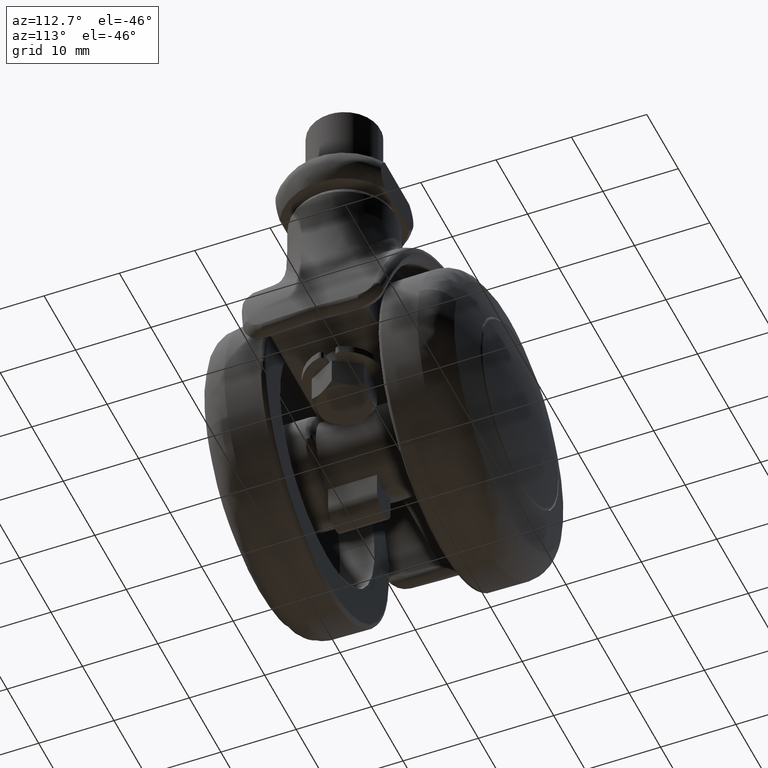
[diagram: clean part render]
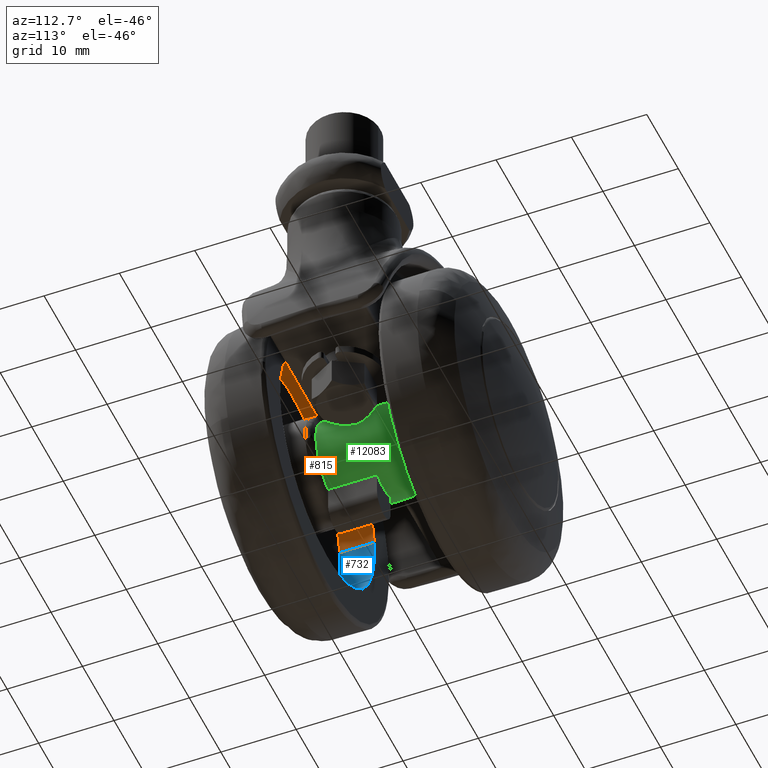
[diagram: same view with three faces highlighted in distinct colors, each labeled with its STEP entity id]
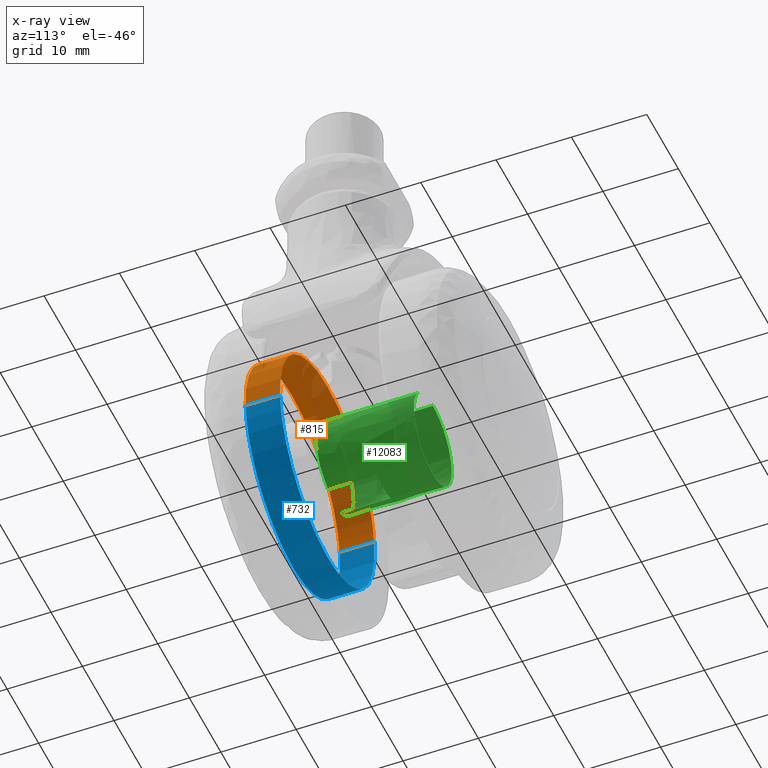
[diagram: x-ray of the same camera — body ghosted, the three highlighted faces saturated]
A machine part, auxiliary view with three faces highlighted in distinct colors.
The next image is the same camera in x-ray (body ghosted, the three faces saturated) — at least one of them is partly hidden behind the body in this view.
Their STEP definitions:

[orange] entity #815 — the highlighted face is a freeform B-spline surface patch.
#652=CARTESIAN_POINT('',(-14.895143268031070,-7.500000000000112,1.770510385402628));
#653=VERTEX_POINT('',#652);
#671=CARTESIAN_POINT('',(-14.895143263547910,-12.087232230838939,1.770510423119121));
#672=VERTEX_POINT('',#671);
#673=CARTESIAN_POINT('',(-14.895143268031070,-7.500000000000112,1.770510385402628));
#674=CARTESIAN_POINT('',(-14.895143263547910,-12.087232230838939,1.770510423119121));
#675=QUASI_UNIFORM_CURVE('',1,(#673,#674),.UNSPECIFIED.,.F.,.U.);
#676=EDGE_CURVE('',#653,#672,#675,.T.);
#695=CARTESIAN_POINT('',(14.972022665491700,-12.087232230838939,-0.915716825156851));
#696=VERTEX_POINT('',#695);
#710=CARTESIAN_POINT('',(14.972022673904799,-7.499999999999893,-0.915716687600522));
#711=VERTEX_POINT('',#710);
#712=CARTESIAN_POINT('',(14.972022673904799,-7.499999999999893,-0.915716687600522));
#713=CARTESIAN_POINT('',(14.972022665491700,-12.087232230838939,-0.915716825156851));
#714=QUASI_UNIFORM_CURVE('',1,(#712,#713),.UNSPECIFIED.,.F.,.U.);
#715=EDGE_CURVE('',#711,#696,#714,.T.);
#733=CARTESIAN_POINT('',(14.972021976328000,-7.385319194229117,-0.915728093022853));
#734=CARTESIAN_POINT('',(15.887750069350853,-7.385319194229119,14.056293883305147));
#735=CARTESIAN_POINT('',(0.915728093022855,-7.385319194229117,14.972021976328000));
#736=CARTESIAN_POINT('',(-13.223152362592515,-7.385319194229119,15.836792950987912));
#737=CARTESIAN_POINT('',(-14.895142895454988,-7.385319194229118,1.770513519851378));
#738=CARTESIAN_POINT('',(14.972021976328000,-12.204780056754190,-0.915728093022853));
#739=CARTESIAN_POINT('',(15.887750069350853,-12.204780056754187,14.056293883305147));
#740=CARTESIAN_POINT('',(0.915728093022855,-12.204780056754190,14.972021976328000));
#741=CARTESIAN_POINT('',(-13.223152362592515,-12.204780056754187,15.836792950987912));
#742=CARTESIAN_POINT('',(-14.895142895454988,-12.204780056754194,1.770513519851378));
#750=(BOUNDED_SURFACE()B_SPLINE_SURFACE(2,1,((#733,#738),(#734,#739),(#735,#740),(#736,#741),(#737,#742)),.UNSPECIFIED.,.F.,.F.,.U.)B_SPLINE_SURFACE_WITH_KNOTS((3,2,3),(2,2),(0.0,24.852813742385699,48.711514935075961),(0.0,4.819460862525070),.UNSPECIFIED.)GEOMETRIC_REPRESENTATION_ITEM()RATIONAL_B_SPLINE_SURFACE(((1.0,1.0),(0.707106781186548,0.707106781186548),(1.0,1.0),(0.718822509939086,0.718822509939086),(0.977505800795127,0.977505800795127)))REPRESENTATION_ITEM('')SURFACE());
#751=CARTESIAN_POINT('',(0.0,-7.500000000000090,15.0));
#752=VERTEX_POINT('',#751);
#753=CARTESIAN_POINT('',(0.0,-7.500000000000090,15.0));
#754=CARTESIAN_POINT('',(-13.322620712542287,-7.500000000000089,15.000000000000009));
#755=CARTESIAN_POINT('',(-14.895143268031076,-7.500000000000112,1.770510385402628));
#763=(BOUNDED_CURVE()B_SPLINE_CURVE(2,(#753,#754,#755),.UNSPECIFIED.,.F.,.U.)B_SPLINE_CURVE_WITH_KNOTS((3,3),(0.0,0.229562509079723),.UNSPECIFIED.)CURVE()GEOMETRIC_REPRESENTATION_ITEM()RATIONAL_B_SPLINE_CURVE((1.0,0.731050791186990,0.956026823894947))REPRESENTATION_ITEM(''));
#764=EDGE_CURVE('',#752,#653,#763,.T.);
#765=ORIENTED_EDGE('',*,*,#764,.F.);
#766=CARTESIAN_POINT('',(14.972022673904796,-7.499999999999893,-0.915716687600522));
#767=CARTESIAN_POINT('',(15.000000000000004,-7.500000000000091,-0.458285730778153));
#768=CARTESIAN_POINT('',(15.0,-7.500000000000090,1.487897E-015));
#769=CARTESIAN_POINT('',(14.999999999999996,-7.500000000000089,15.000000000000012));
#770=CARTESIAN_POINT('',(0.0,-7.500000000000090,15.0));
#778=(BOUNDED_CURVE()B_SPLINE_CURVE(2,(#766,#767,#768,#769,#770),.UNSPECIFIED.,.F.,.U.)B_SPLINE_CURVE_WITH_KNOTS((3,2,3),(0.739333093685083,0.750000000000000,1.0),.UNSPECIFIED.)CURVE()GEOMETRIC_REPRESENTATION_ITEM()RATIONAL_B_SPLINE_CURVE((0.976072323380980,0.987502941898570,1.0,0.707106781186547,1.0))REPRESENTATION_ITEM(''));
#779=EDGE_CURVE('',#711,#752,#778,.T.);
#780=ORIENTED_EDGE('',*,*,#779,.F.);
#781=ORIENTED_EDGE('',*,*,#715,.T.);
#782=CARTESIAN_POINT('',(0.0,-12.087232230838939,15.0));
#783=VERTEX_POINT('',#782);
#784=CARTESIAN_POINT('',(14.972022665491700,-12.087232230838943,-0.915716825156851));
#785=CARTESIAN_POINT('',(15.0,-12.087232230838937,-0.458285799749155));
#786=CARTESIAN_POINT('',(15.0,-12.087232230838939,1.487897E-015));
#787=CARTESIAN_POINT('',(14.999999999999996,-12.087232230838939,15.000000000000012));
#788=CARTESIAN_POINT('',(0.0,-12.087232230838939,15.0));
#796=(BOUNDED_CURVE()B_SPLINE_CURVE(2,(#784,#785,#786,#787,#788),.UNSPECIFIED.,.F.,.U.)B_SPLINE_CURVE_WITH_KNOTS((3,2,3),(0.739333092099799,0.750000000000000,1.0),.UNSPECIFIED.)CURVE()GEOMETRIC_REPRESENTATION_ITEM()RATIONAL_B_SPLINE_CURVE((0.976072319983410,0.987502940041294,1.0,0.707106781186547,1.0))REPRESENTATION_ITEM(''));
#797=EDGE_CURVE('',#696,#783,#796,.T.);
#798=ORIENTED_EDGE('',*,*,#797,.T.);
#799=CARTESIAN_POINT('',(0.0,-12.087232230838939,15.0));
#800=CARTESIAN_POINT('',(-13.322620678570152,-12.087232230838941,15.000000000000005));
#801=CARTESIAN_POINT('',(-14.895143263547912,-12.087232230838936,1.770510423119121));
#809=(BOUNDED_CURVE()B_SPLINE_CURVE(2,(#799,#800,#801),.UNSPECIFIED.,.F.,.U.)B_SPLINE_CURVE_WITH_KNOTS((3,3),(0.0,0.229562508651784),.UNSPECIFIED.)CURVE()GEOMETRIC_REPRESENTATION_ITEM()RATIONAL_B_SPLINE_CURVE((1.0,0.731050791688352,0.956026823056169))REPRESENTATION_ITEM(''));
#810=EDGE_CURVE('',#783,#672,#809,.T.);
#811=ORIENTED_EDGE('',*,*,#810,.T.);
#812=ORIENTED_EDGE('',*,*,#676,.F.);
#813=EDGE_LOOP('',(#765,#780,#781,#798,#811,#812));
#814=FACE_OUTER_BOUND('',#813,.T.);
#815=ADVANCED_FACE('',(#814),#750,.F.);

[blue] entity #732 — the highlighted face is a freeform B-spline surface patch.
#630=CARTESIAN_POINT('',(-14.895142895454988,-7.385319194229118,1.770513519851378));
#631=CARTESIAN_POINT('',(-14.945814231729083,-7.385319194229117,1.344220929569667));
#632=CARTESIAN_POINT('',(-14.972021976328000,-7.385319194229117,0.915728093022856));
#633=CARTESIAN_POINT('',(-15.887750069350853,-7.385319194229119,-14.056293883305143));
#634=CARTESIAN_POINT('',(-0.915728093022855,-7.385319194229117,-14.972021976328000));
#635=CARTESIAN_POINT('',(14.056293883305147,-7.385319194229119,-15.887750069350853));
#636=CARTESIAN_POINT('',(14.972021976328000,-7.385319194229117,-0.915728093022853));
#637=CARTESIAN_POINT('',(-14.895142895454988,-12.204780056754194,1.770513519851378));
#638=CARTESIAN_POINT('',(-14.945814231729083,-12.204780056754190,1.344220929569667));
#639=CARTESIAN_POINT('',(-14.972021976328000,-12.204780056754190,0.915728093022856));
#640=CARTESIAN_POINT('',(-15.887750069350853,-12.204780056754187,-14.056293883305143));
#641=CARTESIAN_POINT('',(-0.915728093022855,-12.204780056754190,-14.972021976328000));
#642=CARTESIAN_POINT('',(14.056293883305147,-12.204780056754187,-15.887750069350853));
#643=CARTESIAN_POINT('',(14.972021976328000,-12.204780056754190,-0.915728093022853));
#651=(BOUNDED_SURFACE()B_SPLINE_SURFACE(2,1,((#630,#637),(#631,#638),(#632,#639),(#633,#640),(#634,#641),(#635,#642),(#636,#643)),.UNSPECIFIED.,.F.,.F.,.U.)B_SPLINE_SURFACE_WITH_KNOTS((3,2,2,3),(2,2),(0.0,0.994112549695429,25.846926292081129,50.699740034466821),(0.0,4.819460862525070),.UNSPECIFIED.)GEOMETRIC_REPRESENTATION_ITEM()RATIONAL_B_SPLINE_SURFACE(((0.977505800795127,0.977505800795127),(0.988284271247462,0.988284271247462),(1.0,1.0),(0.707106781186548,0.707106781186548),(1.0,1.0),(0.707106781186548,0.707106781186548),(1.0,1.0)))REPRESENTATION_ITEM('')SURFACE());
#652=CARTESIAN_POINT('',(-14.895143268031070,-7.500000000000112,1.770510385402628));
#653=VERTEX_POINT('',#652);
#654=CARTESIAN_POINT('',(0.0,-7.500000000000090,-15.0));
#655=VERTEX_POINT('',#654);
#656=CARTESIAN_POINT('',(-14.895143268031076,-7.500000000000112,1.770510385402628));
#657=CARTESIAN_POINT('',(-15.000000000000002,-7.500000000000091,0.888360210985831));
#658=CARTESIAN_POINT('',(-15.0,-7.500000000000090,1.487897E-015));
#659=CARTESIAN_POINT('',(-14.999999999999996,-7.500000000000089,-14.999999999999996));
#660=CARTESIAN_POINT('',(0.0,-7.500000000000090,-15.0));
#668=(BOUNDED_CURVE()B_SPLINE_CURVE(2,(#656,#657,#658,#659,#660),.UNSPECIFIED.,.F.,.U.)B_SPLINE_CURVE_WITH_KNOTS((3,2,3),(0.229562509079723,0.250000000000000,0.500000000000000),.UNSPECIFIED.)CURVE()GEOMETRIC_REPRESENTATION_ITEM()RATIONAL_B_SPLINE_CURVE((0.956026823894947,0.976055989999557,1.0,0.707106781186547,1.0))REPRESENTATION_ITEM(''));
#669=EDGE_CURVE('',#653,#655,#668,.T.);
#670=ORIENTED_EDGE('',*,*,#669,.F.);
#671=CARTESIAN_POINT('',(-14.895143263547910,-12.087232230838939,1.770510423119121));
#672=VERTEX_POINT('',#671);
#673=CARTESIAN_POINT('',(-14.895143268031070,-7.500000000000112,1.770510385402628));
#674=CARTESIAN_POINT('',(-14.895143263547910,-12.087232230838939,1.770510423119121));
#675=QUASI_UNIFORM_CURVE('',1,(#673,#674),.UNSPECIFIED.,.F.,.U.);
#676=EDGE_CURVE('',#653,#672,#675,.T.);
#677=ORIENTED_EDGE('',*,*,#676,.T.);
#678=CARTESIAN_POINT('',(0.0,-12.087232230838939,-15.0));
#679=VERTEX_POINT('',#678);
#680=CARTESIAN_POINT('',(-14.895143263547912,-12.087232230838936,1.770510423119121));
#681=CARTESIAN_POINT('',(-15.000000000000004,-12.087232230838945,0.888360230043443));
#682=CARTESIAN_POINT('',(-15.0,-12.087232230838939,1.487897E-015));
#683=CARTESIAN_POINT('',(-14.999999999999996,-12.087232230838939,-14.999999999999996));
#684=CARTESIAN_POINT('',(0.0,-12.087232230838939,-15.0));
#692=(BOUNDED_CURVE()B_SPLINE_CURVE(2,(#680,#681,#682,#683,#684),.UNSPECIFIED.,.F.,.U.)B_SPLINE_CURVE_WITH_KNOTS((3,2,3),(0.229562508651784,0.250000000000000,0.500000000000000),.UNSPECIFIED.)CURVE()GEOMETRIC_REPRESENTATION_ITEM()RATIONAL_B_SPLINE_CURVE((0.956026823056169,0.976055989498196,1.0,0.707106781186547,1.0))REPRESENTATION_ITEM(''));
#693=EDGE_CURVE('',#672,#679,#692,.T.);
#694=ORIENTED_EDGE('',*,*,#693,.T.);
#695=CARTESIAN_POINT('',(14.972022665491700,-12.087232230838939,-0.915716825156851));
#696=VERTEX_POINT('',#695);
#697=CARTESIAN_POINT('',(0.0,-12.087232230838939,-15.0));
#698=CARTESIAN_POINT('',(14.110601642990849,-12.087232230838939,-14.999999999999995));
#699=CARTESIAN_POINT('',(14.972022665491700,-12.087232230838943,-0.915716825156851));
#707=(BOUNDED_CURVE()B_SPLINE_CURVE(2,(#697,#698,#699),.UNSPECIFIED.,.F.,.U.)B_SPLINE_CURVE_WITH_KNOTS((3,3),(0.500000000000000,0.739333092099799),.UNSPECIFIED.)CURVE()GEOMETRIC_REPRESENTATION_ITEM()RATIONAL_B_SPLINE_CURVE((1.0,0.719603841145254,0.976072319983410))REPRESENTATION_ITEM(''));
#708=EDGE_CURVE('',#679,#696,#707,.T.);
#709=ORIENTED_EDGE('',*,*,#708,.T.);
#710=CARTESIAN_POINT('',(14.972022673904799,-7.499999999999893,-0.915716687600522));
#711=VERTEX_POINT('',#710);
#712=CARTESIAN_POINT('',(14.972022673904799,-7.499999999999893,-0.915716687600522));
#713=CARTESIAN_POINT('',(14.972022665491700,-12.087232230838939,-0.915716825156851));
#714=QUASI_UNIFORM_CURVE('',1,(#712,#713),.UNSPECIFIED.,.F.,.U.);
#715=EDGE_CURVE('',#711,#696,#714,.T.);
#716=ORIENTED_EDGE('',*,*,#715,.F.);
#717=CARTESIAN_POINT('',(0.0,-7.500000000000090,-15.0));
#718=CARTESIAN_POINT('',(14.110601772875075,-7.500000000000088,-15.000000000000005));
#719=CARTESIAN_POINT('',(14.972022673904796,-7.499999999999893,-0.915716687600522));
#727=(BOUNDED_CURVE()B_SPLINE_CURVE(2,(#717,#718,#719),.UNSPECIFIED.,.F.,.U.)B_SPLINE_CURVE_WITH_KNOTS((3,3),(0.500000000000000,0.739333093685083),.UNSPECIFIED.)CURVE()GEOMETRIC_REPRESENTATION_ITEM()RATIONAL_B_SPLINE_CURVE((1.0,0.719603839287978,0.976072323380980))REPRESENTATION_ITEM(''));
#728=EDGE_CURVE('',#655,#711,#727,.T.);
#729=ORIENTED_EDGE('',*,*,#728,.F.);
#730=EDGE_LOOP('',(#670,#677,#694,#709,#716,#729));
#731=FACE_OUTER_BOUND('',#730,.T.);
#732=ADVANCED_FACE('',(#731),#651,.F.);

[green] entity #12083 — the highlighted face is a freeform B-spline surface patch.
#5469=CARTESIAN_POINT('',(-0.983428601145494,-2.249999999999975,5.918856999999999));
#5470=VERTEX_POINT('',#5469);
#5511=CARTESIAN_POINT('',(-5.538461538461511,-2.249999999999975,2.307692307692380));
#5512=VERTEX_POINT('',#5511);
#5528=CARTESIAN_POINT('',(-0.983428601145492,-2.249999999999975,5.918857000000001));
#5529=CARTESIAN_POINT('',(-4.260694387549211,-2.249999999999974,5.374333469881773));
#5530=CARTESIAN_POINT('',(-5.538461538461507,-2.249999999999975,2.307692307692384));
#5538=(BOUNDED_CURVE()B_SPLINE_CURVE(2,(#5528,#5529,#5530),.UNSPECIFIED.,.F.,.U.)CURVE()GEOMETRIC_REPRESENTATION_ITEM()QUASI_UNIFORM_CURVE()RATIONAL_B_SPLINE_CURVE((1.0,0.874845877319245,1.0))REPRESENTATION_ITEM(''));
#5539=EDGE_CURVE('',#5470,#5512,#5538,.T.);
#5624=CARTESIAN_POINT('',(-5.838051064926220,-1.249999999999972,1.384615384615464));
#5625=VERTEX_POINT('',#5624);
#5641=CARTESIAN_POINT('',(-5.838051064926220,-1.249999999999972,1.384615384615464));
#5642=CARTESIAN_POINT('',(-5.838051064926222,-1.315217943467771,1.384615384615464));
#5643=CARTESIAN_POINT('',(-5.836671823138940,-1.380014862154018,1.390469907899989));
#5644=CARTESIAN_POINT('',(-5.831052761159199,-1.508060557264392,1.413848730372913));
#5645=CARTESIAN_POINT('',(-5.826871817917943,-1.570056844881375,1.431123644106834));
#5646=CARTESIAN_POINT('',(-5.818347180930569,-1.660048974303435,1.465255472246830));
#5647=CARTESIAN_POINT('',(-5.815126360619938,-1.689542417489077,1.478012107531949));
#5648=CARTESIAN_POINT('',(-5.807843598967725,-1.747483142898183,1.506375487691414));
#5649=CARTESIAN_POINT('',(-5.803773487632221,-1.775934472331072,1.522009574397533));
#5650=CARTESIAN_POINT('',(-5.790451100763798,-1.857838053226077,1.572219899015561));
#5651=CARTESIAN_POINT('',(-5.780027040483479,-1.908517119709310,1.610364495604157));
#5652=CARTESIAN_POINT('',(-5.761606572641750,-1.978517445671205,1.674630198416813));
#5653=CARTESIAN_POINT('',(-5.754968215993995,-2.000931052659850,1.697337149929056));
#5654=CARTESIAN_POINT('',(-5.740769517066763,-2.043217689115260,1.744757266655573));
#5655=CARTESIAN_POINT('',(-5.733276607639223,-2.062912095202429,1.769248100718819));
#5656=CARTESIAN_POINT('',(-5.709546246952703,-2.117774999142842,1.844960612129534));
#5657=CARTESIAN_POINT('',(-5.692066885106088,-2.148759873669552,1.898402447658727));
#5658=CARTESIAN_POINT('',(-5.662919521724271,-2.186671541720977,1.982985579857774));
#5659=CARTESIAN_POINT('',(-5.652665487809009,-2.197893725318699,2.012046266906879));
#5660=CARTESIAN_POINT('',(-5.631614369187030,-2.216907014903399,2.070235951288442));
#5661=CARTESIAN_POINT('',(-5.620767102037966,-2.224780331475564,2.099516505053884));
#5662=CARTESIAN_POINT('',(-5.587233812664318,-2.243670729259883,2.187872894846566));
#5663=CARTESIAN_POINT('',(-5.563559649793595,-2.249999999999973,2.247456840495377));
#5664=CARTESIAN_POINT('',(-5.538461538461511,-2.249999999999975,2.307692307692380));
#5665=B_SPLINE_CURVE_WITH_KNOTS('',3,(#5641,#5642,#5643,#5644,#5645,#5646,#5647,#5648,#5649,#5650,#5651,#5652,#5653,#5654,#5655,#5656,#5657,#5658,#5659,#5660,#5661,#5662,#5663,#5664),.UNSPECIFIED.,.F.,.U.,(4,2,2,2,2,2,2,2,2,2,2,4),(0.0,0.125000000000000,0.250000000000000,0.312500000000000,0.375000000000000,0.499999999999999,0.562499999999999,0.625000000000000,0.750000000000001,0.812500000000000,0.875000000000000,1.0),.UNSPECIFIED.);
#5666=EDGE_CURVE('',#5625,#5512,#5665,.T.);
#5754=CARTESIAN_POINT('',(-5.838051064926220,1.250000000000000,1.384615384615464));
#5755=VERTEX_POINT('',#5754);
#5771=CARTESIAN_POINT('',(-5.838051064926220,-1.249999999999972,1.384615384615464));
#5772=CARTESIAN_POINT('',(-5.838051064926220,1.250000000000000,1.384615384615464));
#5773=QUASI_UNIFORM_CURVE('',1,(#5771,#5772),.UNSPECIFIED.,.F.,.U.);
#5774=EDGE_CURVE('',#5625,#5755,#5773,.T.);
#5977=CARTESIAN_POINT('',(-5.538461538461511,2.249999999999975,2.307692307692380));
#5978=VERTEX_POINT('',#5977);
#5994=CARTESIAN_POINT('',(-5.538461538461511,2.249999999999975,2.307692307692380));
#5995=CARTESIAN_POINT('',(-5.563539117228240,2.249999999999974,2.247506118652233));
#5996=CARTESIAN_POINT('',(-5.587296994605855,2.243681504419843,2.187724765053774));
#5997=CARTESIAN_POINT('',(-5.621064670305853,2.224589177166284,2.098723138155595));
#5998=CARTESIAN_POINT('',(-5.632062183940901,2.216558716510474,2.069018578012683));
#5999=CARTESIAN_POINT('',(-5.653155053841935,2.197392833630503,2.010671593562748));
#6000=CARTESIAN_POINT('',(-5.663232351878421,2.186298276012880,1.982088803924024));
#6001=CARTESIAN_POINT('',(-5.692161821415560,2.148567860769581,1.898104473107995));
#6002=CARTESIAN_POINT('',(-5.709717919882736,2.117525577003597,1.844449123791552));
#6003=CARTESIAN_POINT('',(-5.741749178063378,2.043173225865419,1.742179000876197));
#6004=CARTESIAN_POINT('',(-5.755676487961788,2.001150412545412,1.695334953895426));
#6005=CARTESIAN_POINT('',(-5.774025824236579,1.931272677723884,1.631293625023715));
#6006=CARTESIAN_POINT('',(-5.779715376173095,1.906830141208083,1.610989835606266));
#6007=CARTESIAN_POINT('',(-5.790301562870167,1.855616528509916,1.572515784029440));
#6008=CARTESIAN_POINT('',(-5.795182324236193,1.828884721441620,1.554399995622919));
#6009=CARTESIAN_POINT('',(-5.808444220824577,1.746940353368162,1.504382200005997));
#6010=CARTESIAN_POINT('',(-5.815577228826125,1.689460551016131,1.476351407881431));
#6011=CARTESIAN_POINT('',(-5.824114818861895,1.599074883090506,1.442159690433923));
#6012=CARTESIAN_POINT('',(-5.826605153590590,1.568091426816997,1.432044385169890));
#6013=CARTESIAN_POINT('',(-5.830815350490650,1.505732287840139,1.414804256930126));
#6014=CARTESIAN_POINT('',(-5.832543860524043,1.474314834191063,1.407645877578205));
#6015=CARTESIAN_POINT('',(-5.836678995631859,1.379369824097765,1.390437883671329));
#6016=CARTESIAN_POINT('',(-5.838051064926219,1.315156337634272,1.384615384615464));
#6017=CARTESIAN_POINT('',(-5.838051064926220,1.250000000000000,1.384615384615464));
#6018=B_SPLINE_CURVE_WITH_KNOTS('',3,(#5994,#5995,#5996,#5997,#5998,#5999,#6000,#6001,#6002,#6003,#6004,#6005,#6006,#6007,#6008,#6009,#6010,#6011,#6012,#6013,#6014,#6015,#6016,#6017),.UNSPECIFIED.,.F.,.U.,(4,2,2,2,2,2,2,2,2,2,2,4),(0.0,0.125000000000001,0.187500000000001,0.250000000000002,0.375000000000002,0.500000000000003,0.562500000000003,0.625000000000002,0.750000000000002,0.812500000000001,0.875000000000001,1.0),.UNSPECIFIED.);
#6019=EDGE_CURVE('',#5978,#5755,#6018,.T.);
#6110=CARTESIAN_POINT('',(-0.983428601145494,2.249999999999975,5.918856999999999));
#6111=VERTEX_POINT('',#6110);
#6143=CARTESIAN_POINT('',(-5.538461538461508,2.249999999999975,2.307692307692383));
#6144=CARTESIAN_POINT('',(-4.260694387549215,2.249999999999976,5.374333469881773));
#6145=CARTESIAN_POINT('',(-0.983428601145493,2.249999999999975,5.918857000000001));
#6153=(BOUNDED_CURVE()B_SPLINE_CURVE(2,(#6143,#6144,#6145),.UNSPECIFIED.,.F.,.U.)CURVE()GEOMETRIC_REPRESENTATION_ITEM()QUASI_UNIFORM_CURVE()RATIONAL_B_SPLINE_CURVE((1.0,0.874845877319245,1.0))REPRESENTATION_ITEM(''));
#6154=EDGE_CURVE('',#5978,#6111,#6153,.T.);
#6463=CARTESIAN_POINT('',(4.873397172404481,-6.0,3.500000000000000));
#6464=VERTEX_POINT('',#6463);
#6465=CARTESIAN_POINT('',(4.472135954999580,-6.500000000000000,4.0));
#6466=VERTEX_POINT('',#6465);
#6467=CARTESIAN_POINT('',(4.873397172404481,-6.0,3.500000000000000));
#6468=CARTESIAN_POINT('',(4.873397172404481,-6.038043631529900,3.500000000000000));
#6469=CARTESIAN_POINT('',(4.870327696053418,-6.075145820077344,3.504284851854230));
#6470=CARTESIAN_POINT('',(4.861364218153590,-6.129476493320387,3.516697880956897));
#6471=CARTESIAN_POINT('',(4.857605229608828,-6.147478470392384,3.521892577064972));
#6472=CARTESIAN_POINT('',(4.848813562073136,-6.182121757871587,3.533986832369928));
#6473=CARTESIAN_POINT('',(4.843778379174472,-6.198842518270711,3.540890015935119));
#6474=CARTESIAN_POINT('',(4.826844195021820,-6.247317913213905,3.563978041880013));
#6475=CARTESIAN_POINT('',(4.812945271027090,-6.277647737669727,3.582769527517065));
#6476=CARTESIAN_POINT('',(4.781629304459965,-6.331870855867387,3.624458699438665));
#6477=CARTESIAN_POINT('',(4.764080119253495,-6.356139230071167,3.647535195559629));
#6478=CARTESIAN_POINT('',(4.725909973796815,-6.398961843411636,3.696856408501742));
#6479=CARTESIAN_POINT('',(4.705680332537444,-6.417124039733008,3.722597525430104));
#6480=CARTESIAN_POINT('',(4.663121100472019,-6.447958508277308,3.775772944802249));
#6481=CARTESIAN_POINT('',(4.640668847959034,-6.460668545446652,3.803355896740793));
#6482=CARTESIAN_POINT('',(4.570978412814675,-6.490761111502084,3.887344863058059));
#6483=CARTESIAN_POINT('',(4.522535397748184,-6.500000000000000,3.943651709993007));
#6484=CARTESIAN_POINT('',(4.472135954999580,-6.500000000000000,4.0));
#6485=B_SPLINE_CURVE_WITH_KNOTS('',3,(#6467,#6468,#6469,#6470,#6471,#6472,#6473,#6474,#6475,#6476,#6477,#6478,#6479,#6480,#6481,#6482,#6483,#6484),.UNSPECIFIED.,.F.,.U.,(4,2,2,2,2,2,2,2,4),(0.0,0.124999999999999,0.187499999999999,0.249999999999999,0.374999999999999,0.499999999999999,0.624999999999999,0.749999999999999,1.0),.UNSPECIFIED.);
#6486=EDGE_CURVE('',#6464,#6466,#6485,.T.);
#6589=CARTESIAN_POINT('',(4.472135954999580,6.500000000000000,4.0));
#6590=VERTEX_POINT('',#6589);
#6591=CARTESIAN_POINT('',(4.873397172404481,6.0,3.500000000000000));
#6592=VERTEX_POINT('',#6591);
#6593=CARTESIAN_POINT('',(4.472135954999580,6.500000000000000,4.0));
#6594=CARTESIAN_POINT('',(4.522553274307344,6.500000000000003,3.943631723392267));
#6595=CARTESIAN_POINT('',(4.570960519747982,6.490751288153390,3.887363399851654));
#6596=CARTESIAN_POINT('',(4.640524979077231,6.460739414450947,3.803530792232468));
#6597=CARTESIAN_POINT('',(4.663096663725018,6.447977027159212,3.775803583755952));
#6598=CARTESIAN_POINT('',(4.705719414186365,6.417094910233253,3.722548588440077));
#6599=CARTESIAN_POINT('',(4.725951898305869,6.398918035248059,3.696802515757882));
#6600=CARTESIAN_POINT('',(4.764078570931958,6.356137737271976,3.647536916276729));
#6601=CARTESIAN_POINT('',(4.781665420079106,6.331803392360559,3.624410392992028));
#6602=CARTESIAN_POINT('',(4.805069774641122,6.291286499920469,3.593253843306790));
#6603=CARTESIAN_POINT('',(4.812407494464185,6.277069203304232,3.583415429311206));
#6604=CARTESIAN_POINT('',(4.826097233992199,6.247077978082947,3.564956874893934));
#6605=CARTESIAN_POINT('',(4.832444596721898,6.231275972299413,3.556342295220353));
#6606=CARTESIAN_POINT('',(4.849398503237238,6.182775107547617,3.533227895485096));
#6607=CARTESIAN_POINT('',(4.858157185732174,6.148578839944221,3.521138317056384));
#6608=CARTESIAN_POINT('',(4.867211079633891,6.094198380371591,3.508601270958702));
#6609=CARTESIAN_POINT('',(4.869538363423837,6.075468221566166,3.505367753192813));
#6610=CARTESIAN_POINT('',(4.872618631647948,6.037948835616007,3.501084778821818));
#6611=CARTESIAN_POINT('',(4.873397172404481,6.019047180122175,3.500000000000000));
#6612=CARTESIAN_POINT('',(4.873397172404481,6.0,3.500000000000000));
#6613=B_SPLINE_CURVE_WITH_KNOTS('',3,(#6593,#6594,#6595,#6596,#6597,#6598,#6599,#6600,#6601,#6602,#6603,#6604,#6605,#6606,#6607,#6608,#6609,#6610,#6611,#6612),.UNSPECIFIED.,.F.,.U.,(4,2,2,2,2,2,2,2,2,4),(0.0,0.250000000000003,0.375000000000004,0.500000000000004,0.625000000000005,0.687500000000005,0.750000000000005,0.875000000000004,0.937500000000002,1.0),.UNSPECIFIED.);
#6614=EDGE_CURVE('',#6590,#6592,#6613,.T.);
#6792=CARTESIAN_POINT('',(2.149999999999805,0.0,-5.601562282078170));
#6793=VERTEX_POINT('',#6792);
#6794=CARTESIAN_POINT('',(-2.150000000000000,0.0,-5.601562282078100));
#6795=VERTEX_POINT('',#6794);
#6796=CARTESIAN_POINT('',(2.149999999999809,0.0,-5.601562282078173));
#6797=CARTESIAN_POINT('',(-1.097213E-013,0.0,-6.426778492703696));
#6798=CARTESIAN_POINT('',(-2.150000000000000,0.0,-5.601562282078099));
#6806=(BOUNDED_CURVE()B_SPLINE_CURVE(2,(#6796,#6797,#6798),.UNSPECIFIED.,.F.,.U.)CURVE()GEOMETRIC_REPRESENTATION_ITEM()QUASI_UNIFORM_CURVE()RATIONAL_B_SPLINE_CURVE((1.0,0.933593713679689,1.0))REPRESENTATION_ITEM(''));
#6807=EDGE_CURVE('',#6793,#6795,#6806,.T.);
#6848=CARTESIAN_POINT('',(-2.150000000000000,-6.500000000000000,-5.601562282078100));
#6849=VERTEX_POINT('',#6848);
#6855=CARTESIAN_POINT('',(-2.150000000000000,-6.500000000000000,-5.601562282078100));
#6856=CARTESIAN_POINT('',(-2.150000000000000,0.0,-5.601562282078100));
#6857=QUASI_UNIFORM_CURVE('',1,(#6855,#6856),.UNSPECIFIED.,.F.,.U.);
#6858=EDGE_CURVE('',#6849,#6795,#6857,.T.);
#6875=CARTESIAN_POINT('',(2.149999999999805,-6.500000000000000,-5.601562282078170));
#6876=VERTEX_POINT('',#6875);
#6877=CARTESIAN_POINT('',(2.149999999999805,0.0,-5.601562282078170));
#6878=CARTESIAN_POINT('',(2.149999999999805,-6.500000000000000,-5.601562282078170));
#6879=QUASI_UNIFORM_CURVE('',1,(#6877,#6878),.UNSPECIFIED.,.F.,.U.);
#6880=EDGE_CURVE('',#6793,#6876,#6879,.T.);
#7521=CARTESIAN_POINT('',(-0.983428601145494,2.249999999999975,5.918856999999999));
#7522=CARTESIAN_POINT('',(-0.983428601145494,-2.249999999999975,5.918856999999999));
#7523=QUASI_UNIFORM_CURVE('',1,(#7521,#7522),.UNSPECIFIED.,.F.,.U.);
#7524=EDGE_CURVE('',#6111,#5470,#7523,.T.);
#7702=CARTESIAN_POINT('',(4.873397172404481,6.0,3.500000000000000));
#7703=CARTESIAN_POINT('',(4.873397172404481,-6.0,3.500000000000000));
#7704=QUASI_UNIFORM_CURVE('',1,(#7702,#7703),.UNSPECIFIED.,.F.,.U.);
#7705=EDGE_CURVE('',#6592,#6464,#7704,.T.);
#11983=CARTESIAN_POINT('',(4.352246226073724,6.825000000000001,4.130127454162523));
#11984=CARTESIAN_POINT('',(4.352246226073724,-6.833125000000001,4.130127454162523));
#11985=CARTESIAN_POINT('',(7.787236970815049,6.825000000000001,0.510402476830065));
#11986=CARTESIAN_POINT('',(7.787236970815049,-6.833125000000001,0.510402476830065));
#11987=CARTESIAN_POINT('',(4.854101966249682,6.825000000000001,-3.526711513754838));
#11988=CARTESIAN_POINT('',(4.854101966249682,-6.833125000000001,-3.526711513754838));
#11989=CARTESIAN_POINT('',(1.920966961684317,6.825000000000001,-7.563825504339739));
#11990=CARTESIAN_POINT('',(1.920966961684317,-6.833125000000001,-7.563825504339739));
#11991=CARTESIAN_POINT('',(-2.583066580849771,6.825000000000001,-5.415511706099161));
#11992=CARTESIAN_POINT('',(-2.583066580849771,-6.833125000000001,-5.415511706099161));
#11993=CARTESIAN_POINT('',(-7.087100123383858,6.825000000000001,-3.267197907858583));
#11994=CARTESIAN_POINT('',(-7.087100123383858,-6.833125000000001,-3.267197907858583));
#11995=CARTESIAN_POINT('',(-5.795554957734407,6.825000000000001,1.552914270615125));
#11996=CARTESIAN_POINT('',(-5.795554957734407,-6.833125000000001,1.552914270615125));
#11997=CARTESIAN_POINT('',(-4.504009792084956,6.825000000000001,6.373026449088833));
#11998=CARTESIAN_POINT('',(-4.504009792084956,-6.833125000000001,6.373026449088833));
#11999=CARTESIAN_POINT('',(0.470754574367071,6.825000000000001,5.981504002398764));
#12000=CARTESIAN_POINT('',(0.470754574367071,-6.833125000000001,5.981504002398764));
#12008=(BOUNDED_SURFACE()B_SPLINE_SURFACE(1,2,((#11983,#11985,#11987,#11989,#11991,#11993,#11995,#11997,#11999),(#11984,#11986,#11988,#11990,#11992,#11994,#11996,#11998,#12000)),.UNSPECIFIED.,.F.,.F.,.U.)B_SPLINE_SURFACE_WITH_KNOTS((2,2),(3,2,2,2,3),(0.0,13.658125000000000),(0.0,8.676036358516363,17.352072717032730,26.028109075549089,34.704145434065452),.UNSPECIFIED.)GEOMETRIC_REPRESENTATION_ITEM()RATIONAL_B_SPLINE_SURFACE(((1.0,0.768841832073459,1.0,0.768841832073459,1.0,0.768841832073459,1.0,0.768841832073459,1.0),(1.0,0.768841832073459,1.0,0.768841832073459,1.0,0.768841832073459,1.0,0.768841832073459,1.0)))REPRESENTATION_ITEM('')SURFACE());
#12009=ORIENTED_EDGE('',*,*,#6880,.F.);
#12010=ORIENTED_EDGE('',*,*,#6807,.T.);
#12011=ORIENTED_EDGE('',*,*,#6858,.F.);
#12012=CARTESIAN_POINT('',(0.0,-6.500000000000000,6.0));
#12013=VERTEX_POINT('',#12012);
#12014=CARTESIAN_POINT('',(0.0,-6.500000000000000,6.0));
#12015=CARTESIAN_POINT('',(-4.990241415677488,-6.500000000000000,6.0));
#12016=CARTESIAN_POINT('',(-5.899549715549000,-6.500000000000000,1.093303779269839));
#12017=CARTESIAN_POINT('',(-6.808858015420510,-6.500000000000000,-3.813392441460329));
#12018=CARTESIAN_POINT('',(-2.150000000000003,-6.500000000000000,-5.601562282078098));
#12026=(BOUNDED_CURVE()B_SPLINE_CURVE(2,(#12014,#12015,#12016,#12017,#12018),.UNSPECIFIED.,.F.,.U.)B_SPLINE_CURVE_WITH_KNOTS((3,2,3),(0.0,0.500000000000000,1.0),.UNSPECIFIED.)CURVE()GEOMETRIC_REPRESENTATION_ITEM()RATIONAL_B_SPLINE_CURVE((1.0,0.768835904645774,1.0,0.768835904645774,1.0))REPRESENTATION_ITEM(''));
#12027=EDGE_CURVE('',#12013,#6849,#12026,.T.);
#12028=ORIENTED_EDGE('',*,*,#12027,.F.);
#12029=CARTESIAN_POINT('',(0.0,6.500000000000000,6.0));
#12030=VERTEX_POINT('',#12029);
#12031=CARTESIAN_POINT('',(0.0,6.500000000000000,6.0));
#12032=CARTESIAN_POINT('',(0.0,-6.500000000000000,6.0));
#12033=QUASI_UNIFORM_CURVE('',1,(#12031,#12032),.UNSPECIFIED.,.F.,.U.);
#12034=EDGE_CURVE('',#12030,#12013,#12033,.T.);
#12035=ORIENTED_EDGE('',*,*,#12034,.F.);
#12036=CARTESIAN_POINT('',(0.0,6.500000000000000,6.0));
#12037=CARTESIAN_POINT('',(-4.854594394498438,6.500000000000000,6.0));
#12038=CARTESIAN_POINT('',(-5.867851116478246,6.500000000000000,1.252327143698887));
#12039=CARTESIAN_POINT('',(-6.881107838458055,6.500000000000000,-3.495345712602222));
#12040=CARTESIAN_POINT('',(-2.449489742783179,6.500000000000000,-5.477225575051660));
#12041=CARTESIAN_POINT('',(1.982128352891696,6.500000000000000,-7.459105437501099));
#12042=CARTESIAN_POINT('',(4.845330285445114,6.500000000000000,-3.538753230298541));
#12043=CARTESIAN_POINT('',(7.708532217998538,6.500000000000000,0.381598976904021));
#12044=CARTESIAN_POINT('',(4.472135954999580,6.500000000000000,4.0));
#12052=(BOUNDED_CURVE()B_SPLINE_CURVE(2,(#12036,#12037,#12038,#12039,#12040,#12041,#12042,#12043,#12044),.UNSPECIFIED.,.F.,.U.)B_SPLINE_CURVE_WITH_KNOTS((3,2,2,2,3),(0.0,0.250000000000000,0.500000000000000,0.750000000000000,1.0),.UNSPECIFIED.)CURVE()GEOMETRIC_REPRESENTATION_ITEM()RATIONAL_B_SPLINE_CURVE((1.0,0.777406325744935,1.0,0.777406325744935,1.0,0.777406325744935,1.0,0.777406325744935,1.0))REPRESENTATION_ITEM(''));
#12053=EDGE_CURVE('',#12030,#6590,#12052,.T.);
#12054=ORIENTED_EDGE('',*,*,#12053,.T.);
#12055=ORIENTED_EDGE('',*,*,#6614,.T.);
#12056=ORIENTED_EDGE('',*,*,#7705,.T.);
#12057=ORIENTED_EDGE('',*,*,#6486,.T.);
#12058=CARTESIAN_POINT('',(2.149999999999806,-6.500000000000000,-5.601562282078174));
#12059=CARTESIAN_POINT('',(5.091273795792590,-6.499999999999999,-4.472638181531028));
#12060=CARTESIAN_POINT('',(5.831866829393523,-6.500000000000000,-1.410435849026654));
#12061=CARTESIAN_POINT('',(6.572459862994457,-6.499999999999999,1.651766483477722));
#12062=CARTESIAN_POINT('',(4.472135954999579,-6.500000000000000,4.000000000000001));
#12070=(BOUNDED_CURVE()B_SPLINE_CURVE(2,(#12058,#12059,#12060,#12061,#12062),.UNSPECIFIED.,.F.,.U.)B_SPLINE_CURVE_WITH_KNOTS((3,2,3),(0.0,0.500000000000000,1.0),.UNSPECIFIED.)CURVE()GEOMETRIC_REPRESENTATION_ITEM()RATIONAL_B_SPLINE_CURVE((1.0,0.885368394263666,1.0,0.885368394263666,1.0))REPRESENTATION_ITEM(''));
#12071=EDGE_CURVE('',#6876,#6466,#12070,.T.);
#12072=ORIENTED_EDGE('',*,*,#12071,.F.);
#12073=EDGE_LOOP('',(#12009,#12010,#12011,#12028,#12035,#12054,#12055,#12056,#12057,#12072));
#12074=FACE_OUTER_BOUND('',#12073,.T.);
#12075=ORIENTED_EDGE('',*,*,#7524,.T.);
#12076=ORIENTED_EDGE('',*,*,#5539,.T.);
#12077=ORIENTED_EDGE('',*,*,#5666,.F.);
#12078=ORIENTED_EDGE('',*,*,#5774,.T.);
#12079=ORIENTED_EDGE('',*,*,#6019,.F.);
#12080=ORIENTED_EDGE('',*,*,#6154,.T.);
#12081=EDGE_LOOP('',(#12075,#12076,#12077,#12078,#12079,#12080));
#12082=FACE_BOUND('',#12081,.T.);
#12083=ADVANCED_FACE('',(#12074,#12082),#12008,.T.);